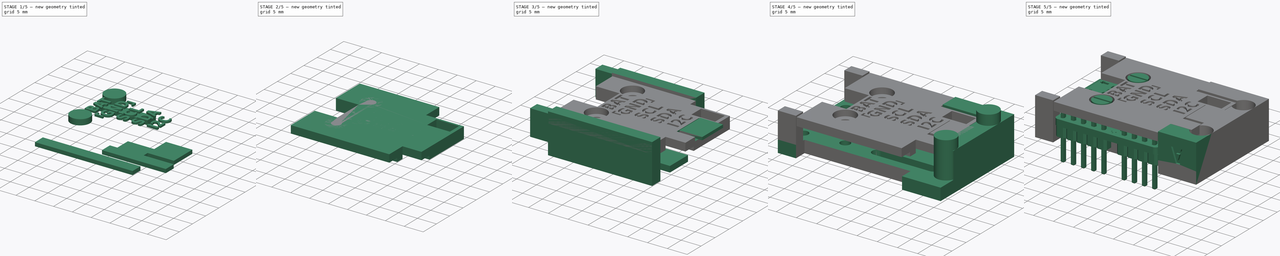
[diagram: build sequence overview — one tinted view per stage of 5, left to right]
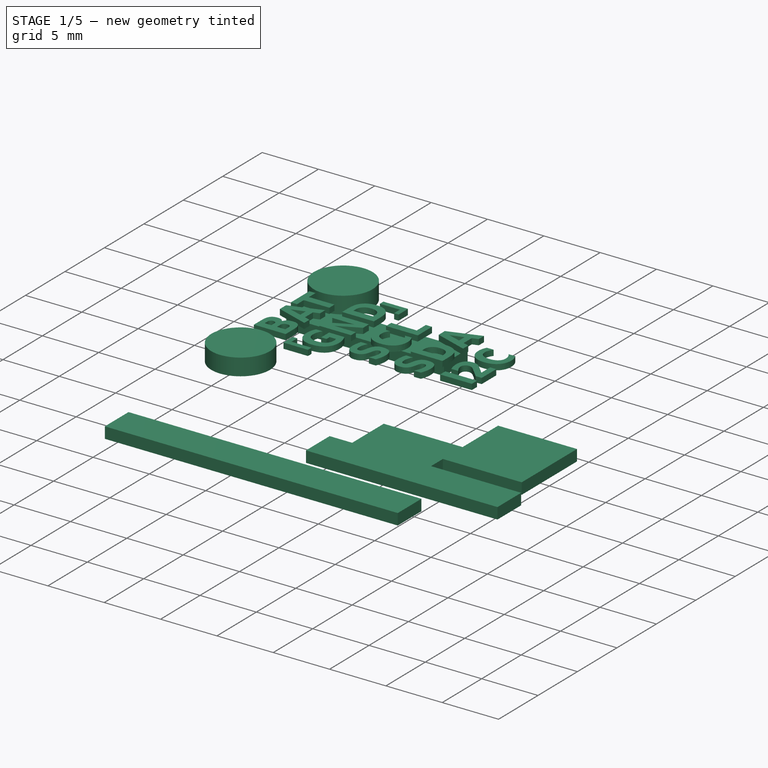
[diagram: stage 1 of 5 — iso view after this stage's code; geometry added in this stage tinted green]
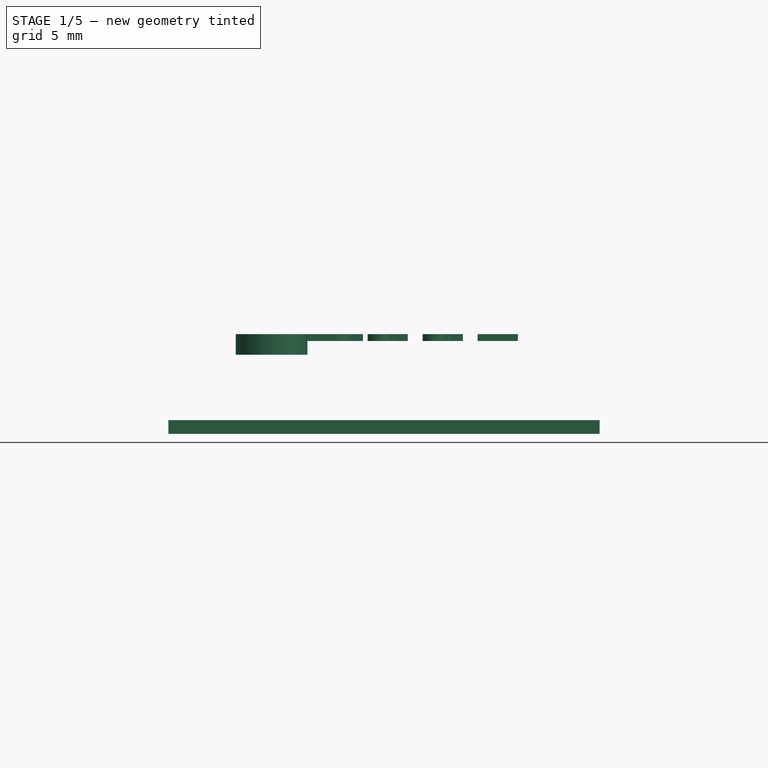
[diagram: stage 1 of 5 — front view after this stage's code; geometry added in this stage tinted green]
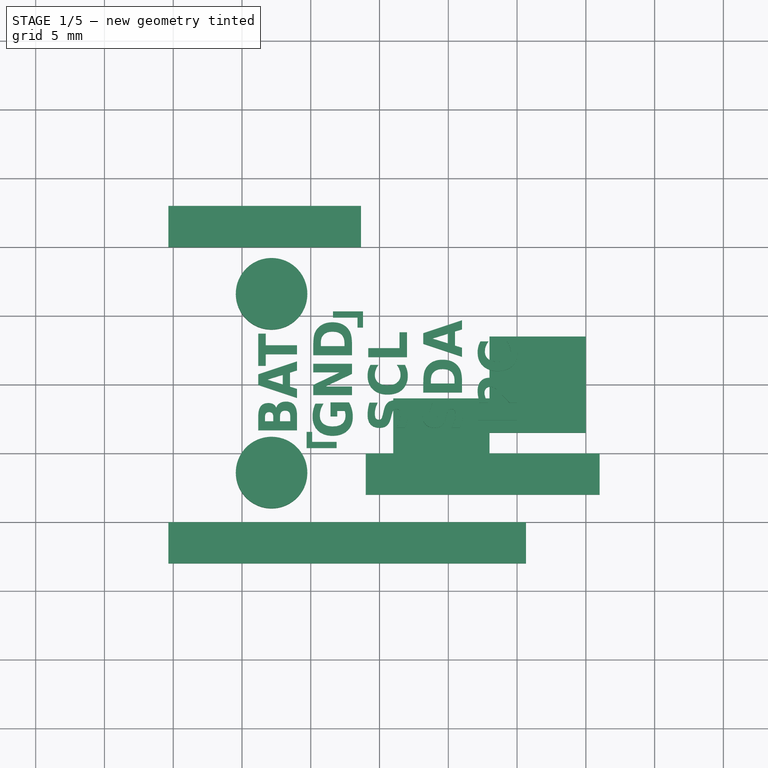
[diagram: stage 1 of 5 — top view after this stage's code; geometry added in this stage tinted green]
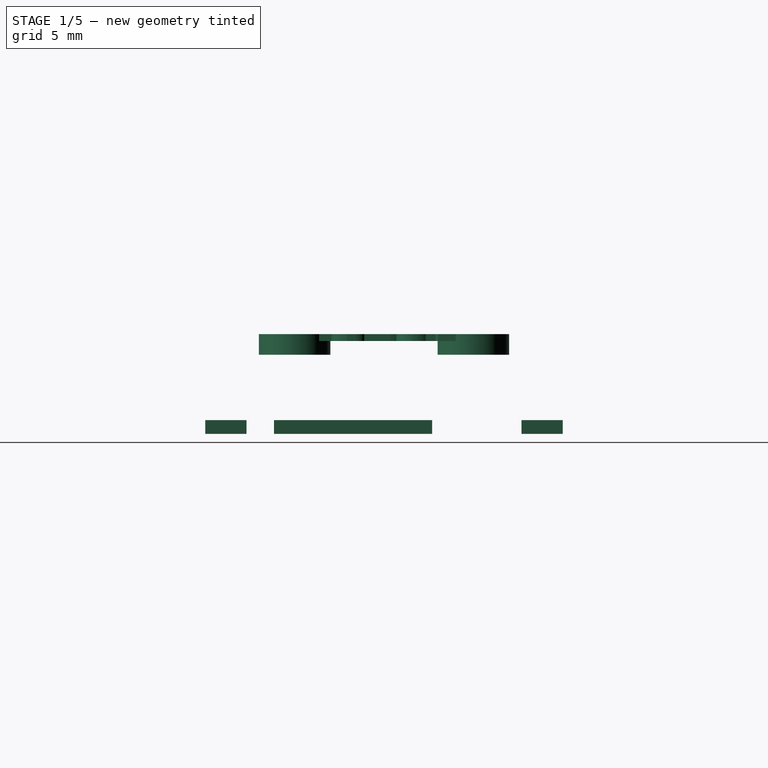
[diagram: stage 1 of 5 — right view after this stage's code; geometry added in this stage tinted green]
FCSTD DOCUMENT  (FreeCAD 0.15R4671 (Git))
Label: FutabaS3003-wide
License: All rights reserved
LicenseURL: http://en.wikipedia.org/wiki/All_rights_reserved
objects: Part::Feature×169, Part::Box×25, Part::MultiFuse×19, Part::Cylinder×13, Part::Cut×12, PartDesign::Pad×10, Part::Part2DObjectPython×9, App::DocumentObjectGroup×3, Image::ImagePlane×2, Part::Compound×1, Sketcher::SketchObject×1, Part::FeaturePython×1
note: 270 computed .brp shape members not serialized (recipe doc carries the construction recipe); baked Part::Feature solids carry a one-line shape summary decoded from their .brp

FEATURE [Part::Box] Box053  label="Cube046"
  Height = 1
  Length = 7
  Placement = pos=(21,4,0) rot=(0,0,1;0rad)
  Width = 5
FEATURE [Part::Box] Box054  label="Cube047"
  Height = 1
  Length = 26
  Placement = pos=(4.65,-3,0) rot=(0,0,1;0rad)
  Width = 3
FEATURE [Part::Box] Box055  label="Cube048"
  Height = 1
  Length = 14
  Placement = pos=(4.65,20,0) rot=(0,0,1;0rad)
  Width = 3
FEATURE [Part::Cylinder] Cylinder026
  Angle = 360
  Height = 1.5
  Placement = pos=(12.15,3.5,5.75) rot=(0,0,1;0rad)
  Radius = 2.6
FEATURE [Part::Cylinder] Cylinder027
  Angle = 360
  Height = 1.5
  Placement = pos=(12.15,16.5,5.75) rot=(0,0,1;0rad)
  Radius = 2.6
FEATURE [Part::MultiFuse] Fusion042  label="screwHeadHole001"
  Shapes = -> [Cylinder026,Cylinder027]
FEATURE [Part::Box] Box056  label="Cube049"
  Height = 1
  Length = 17
  Placement = pos=(19,2,0) rot=(0,0,1;0rad)
  Width = 3
FEATURE [Part::Part2DObjectPython] ShapeString025  # Draft 2D object (typed FeaturePython)
  FontFile = <path>
  Placement = pos=(14,6.25,6.75) rot=(0,0,1;1.5708rad)
  Size = 3
  String = BAT
  Tracking = 0
FEATURE [PartDesign::Pad] Pad026
  Length = 0.5
  Length2 = 100
  Placement = pos=(14,6.25,6.75) rot=(0,0,1;1.5708rad)
  Sketch = -> ShapeString025
  Type = 0
FEATURE [Part::Part2DObjectPython] ShapeString026  # Draft 2D object (typed FeaturePython)
  FontFile = <path>
  Placement = pos=(18,6,6.75) rot=(0,0,1;1.5708rad)
  Size = 3
  String = GND
  Tracking = 0
FEATURE [PartDesign::Pad] Pad027
  Length = 0.5
  Length2 = 100
  Placement = pos=(18,6,6.75) rot=(0,0,1;1.5708rad)
  Sketch = -> ShapeString026
  Type = 0
FEATURE [Part::Part2DObjectPython] ShapeString027  # Draft 2D object (typed FeaturePython)
  FontFile = <path>
  Placement = pos=(22,6.5,6.75) rot=(0,0,1;1.5708rad)
  Size = 3
  String = SCL
  Tracking = 0
FEATURE [PartDesign::Pad] Pad028
  Length = 0.5
  Length2 = 100
  Placement = pos=(22,6.5,6.75) rot=(0,0,1;1.5708rad)
  Sketch = -> ShapeString027
  Type = 0
FEATURE [Part::Part2DObjectPython] ShapeString028  # Draft 2D object (typed FeaturePython)
  FontFile = <path>
  Placement = pos=(26,6.5,6.75) rot=(0,0,1;1.5708rad)
  Size = 3
  String = SDA
  Tracking = 0
FEATURE [PartDesign::Pad] Pad029
  Length = 0.5
  Length2 = 100
  Placement = pos=(26,6.5,6.75) rot=(0,0,1;1.5708rad)
  Sketch = -> ShapeString028
  Type = 0
FEATURE [Part::Part2DObjectPython] ShapeString029  # Draft 2D object (typed FeaturePython)
  FontFile = <path>
  Placement = pos=(30,7,6.75) rot=(0,0,1;1.5708rad)
  Size = 3
  String = I2C
  Tracking = 0
FEATURE [PartDesign::Pad] Pad030
  Length = 0.5
  Length2 = 100
  Placement = pos=(30,7,6.75) rot=(0,0,1;1.5708rad)
  Sketch = -> ShapeString029
  Type = 0
FEATURE [Part::Box] Box057  label="Cube050"
  Height = 1
  Length = 7
  Placement = pos=(28,6.5,0) rot=(0,0,1;0rad)
  Width = 7
FEATURE [Part::Part2DObjectPython] ShapeString031  # Draft 2D object (typed FeaturePython)
  FontFile = <path>
  Placement = pos=(16.25,13.5,6.75) rot=(0,0,1;0rad)
  Size = 3
  String = ¬
  Tracking = 0
FEATURE [Part::Part2DObjectPython] ShapeString032  label="ShapeString030"  # Draft 2D object (typed FeaturePython)
  FontFile = <path>
  Placement = pos=(17.25,7,6.75) rot=(0,0,1;3.14159rad)
  Size = 3
  String = ¬
  Tracking = 0
FEATURE [PartDesign::Pad] Pad031
  Length = 0.5
  Length2 = 100
  Placement = pos=(16.25,13.5,6.75) rot=(0,0,1;0rad)
  Sketch = -> ShapeString031
  Type = 0
FEATURE [PartDesign::Pad] Pad032
  Length = 0.5
  Length2 = 100
  Placement = pos=(17.25,7,6.75) rot=(0,0,1;3.14159rad)
  Sketch = -> ShapeString032
  Type = 0
FEATURE [Part::MultiFuse] Fusion043  label="text"
  Shapes = -> [Pad026,Pad030,Pad029,Pad028,Pad027,Pad031,Pad032]
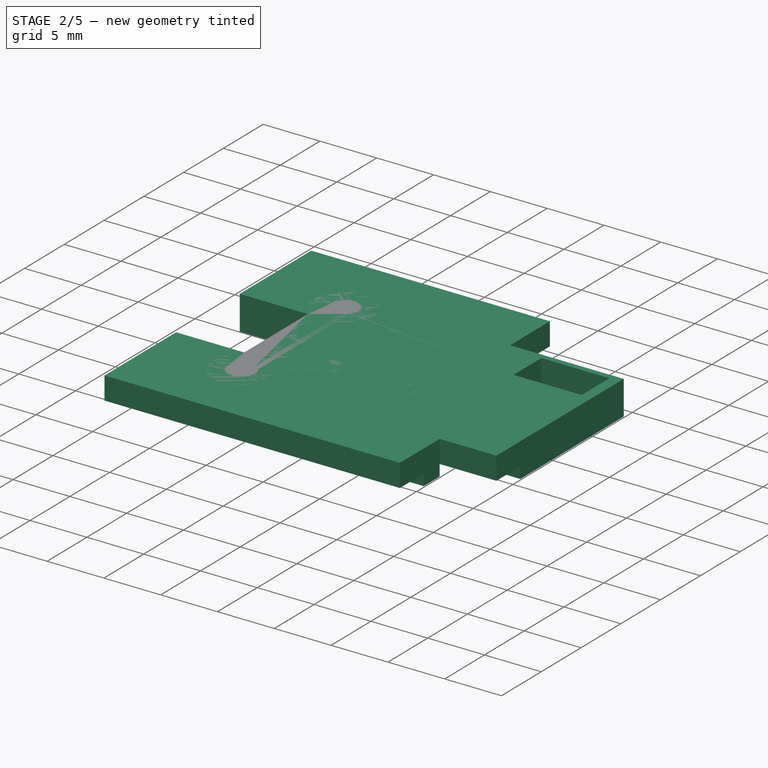
[diagram: stage 2 of 5 — iso view after this stage's code; geometry added in this stage tinted green]
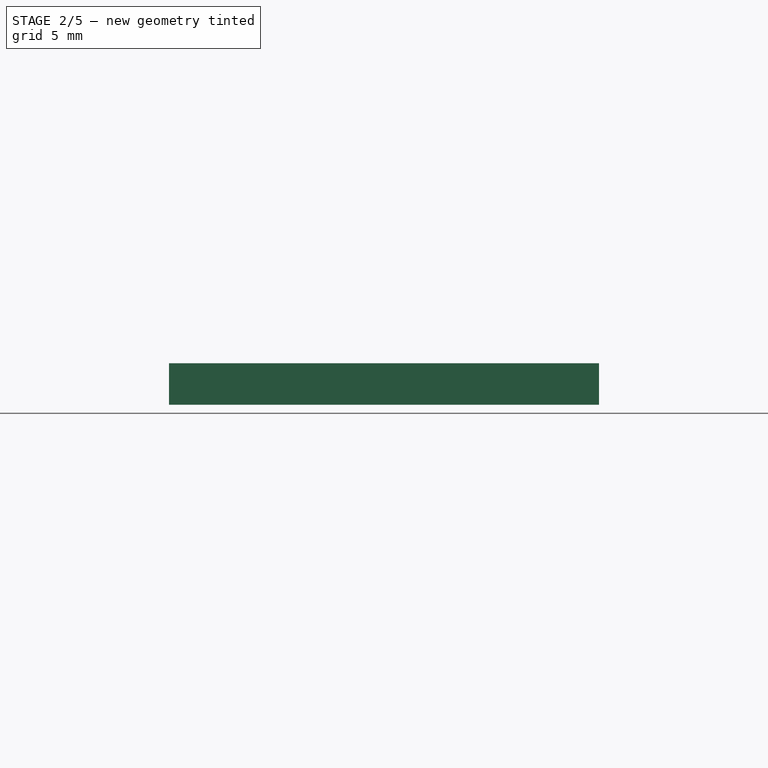
[diagram: stage 2 of 5 — front view after this stage's code; geometry added in this stage tinted green]
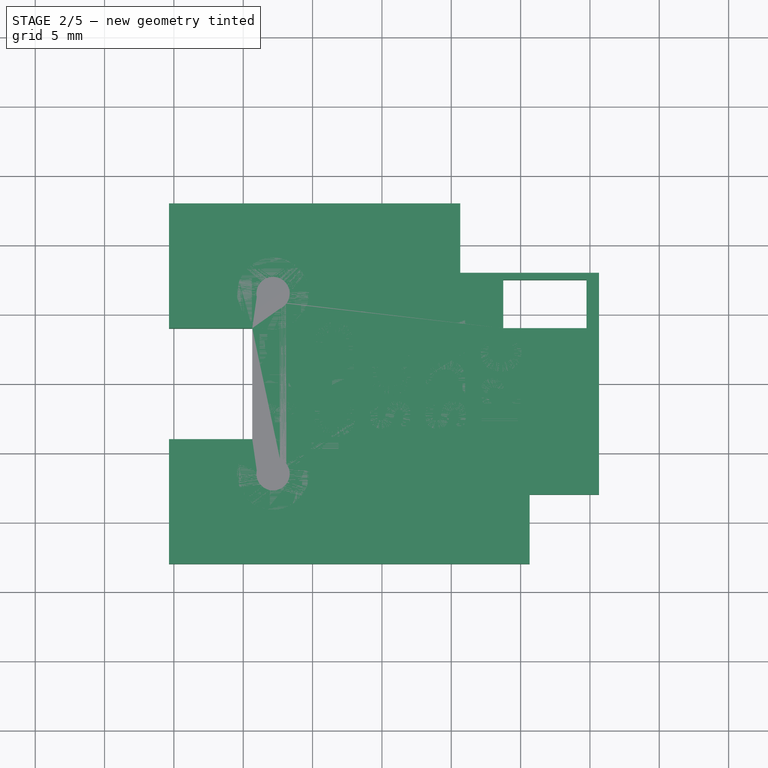
[diagram: stage 2 of 5 — top view after this stage's code; geometry added in this stage tinted green]
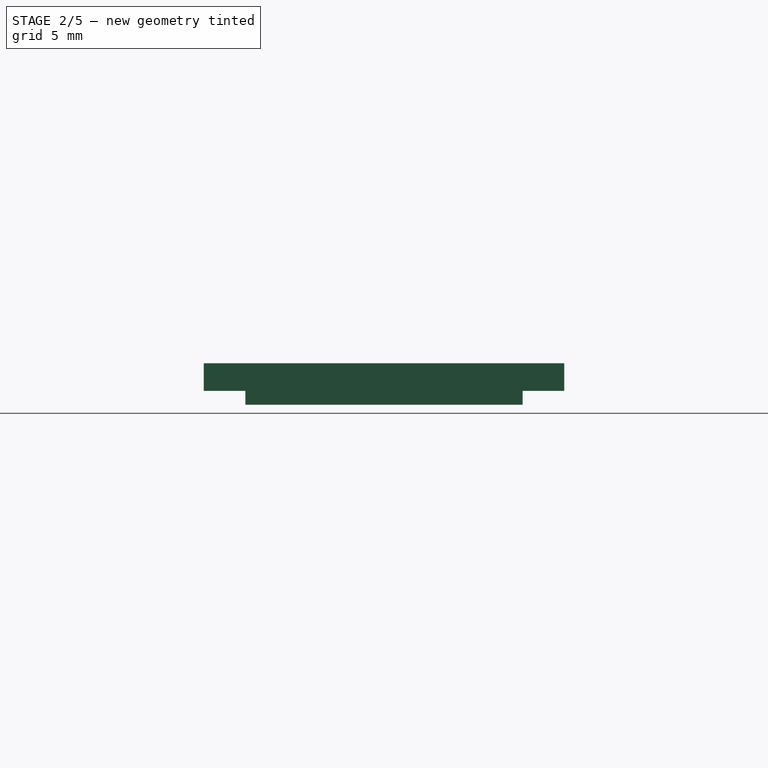
[diagram: stage 2 of 5 — right view after this stage's code; geometry added in this stage tinted green]
FEATURE [Part::Box] Box046  label="btnHole001"
  Height = 5
  Length = 6
  Placement = pos=(28.75,14,2) rot=(0,0,1;0rad)
  Width = 3.5
FEATURE [Part::Box] Box047  label="Cube040"
  Height = 3
  Length = 26
  Placement = pos=(4.65,-3,4) rot=(0,0,1;0rad)
  Width = 5
FEATURE [Part::Box] Box048  label="Cube041"
  Height = 3
  Length = 31
  Placement = pos=(4.65,2,4) rot=(0,0,1;0rad)
  Width = 16
FEATURE [Part::Box] Box049  label="Cube042"
  Height = 3
  Length = 14
  Placement = pos=(4.65,18,4) rot=(0,0,1;0rad)
  Width = 5
FEATURE [Part::Box] Box050  label="Cube043"
  Height = 2
  Length = 7
  Placement = pos=(18.65,18,5) rot=(0,0,1;0rad)
  Width = 5
FEATURE [Part::MultiFuse] Fusion039  label="Fusion032"
  Shapes = -> [Box050,Box047,Box048,Box049]
FEATURE [Part::Box] Box051  label="Cube044"
  Height = 3
  Length = 6
  Placement = pos=(4.65,6,4) rot=(0,0,1;0rad)
  Width = 8
FEATURE [Part::Cut] Cut025  label="Cut036"
  Base = -> Fusion039
  Tool = -> Box051
FEATURE [Part::Cylinder] Cylinder024
  Angle = 360
  Height = 3
  Placement = pos=(7.5,6.5,0) rot=(0,0,1;0rad)
  Radius = 1.2
FEATURE [Part::Cylinder] Cylinder025
  Angle = 360
  Height = 3
  Placement = pos=(7.5,19.5,0) rot=(0,0,1;0rad)
  Radius = 1.2
FEATURE [Part::MultiFuse] Fusion040  label="holes-pcb-screws002"
  Placement = pos=(4.65,-3,4) rot=(0,0,1;0rad)
  Shapes = -> [Cylinder025,Cylinder024]
FEATURE [Part::Cut] Cut026  label="Cut037"
  Base = -> Cut025
  Tool = -> Fusion040
FEATURE [Part::Cut] Cut027  label="Cut021"
  Base = -> Cut026
  Placement = pos=(0,0,0.25) rot=(0,0,1;0rad)
  Tool = -> Box046
FEATURE [Part::Box] Box052  label="Cube045"
  Height = 1
  Length = 3
  Placement = pos=(12.5,6,0) rot=(0,0,1;0rad)
  Width = 4
FEATURE [Part::MultiFuse] Fusion041  label="sockets001"
  Placement = pos=(0,0,4.25) rot=(0,0,1;0rad)
  Shapes = -> [Box055,Box053,Box052,Box054,Box056,Box057]
FEATURE [Part::Cut] Cut028  label="Cut038"
  Base = -> Cut027
  Tool = -> Fusion041
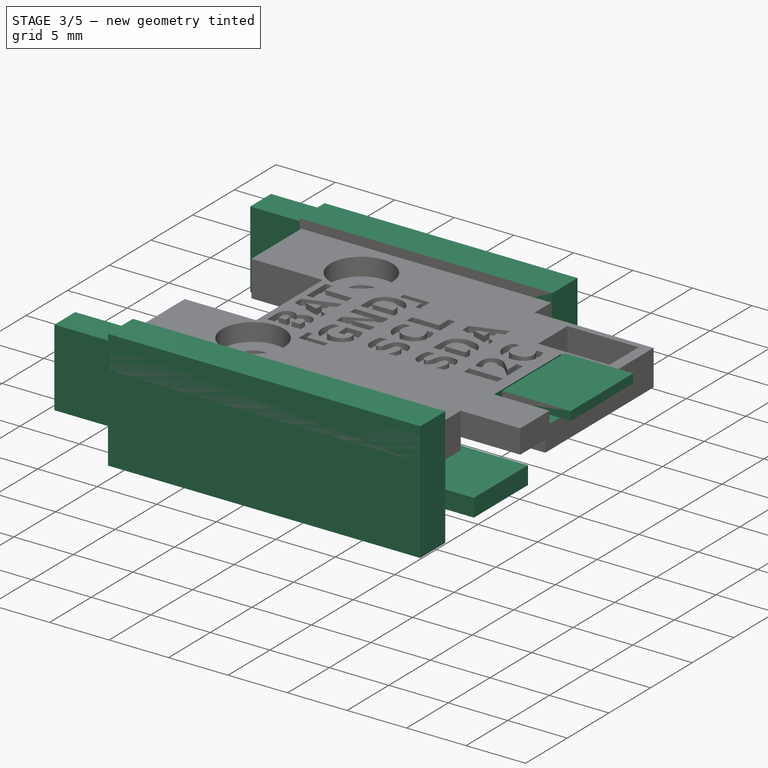
[diagram: stage 3 of 5 — iso view after this stage's code; geometry added in this stage tinted green]
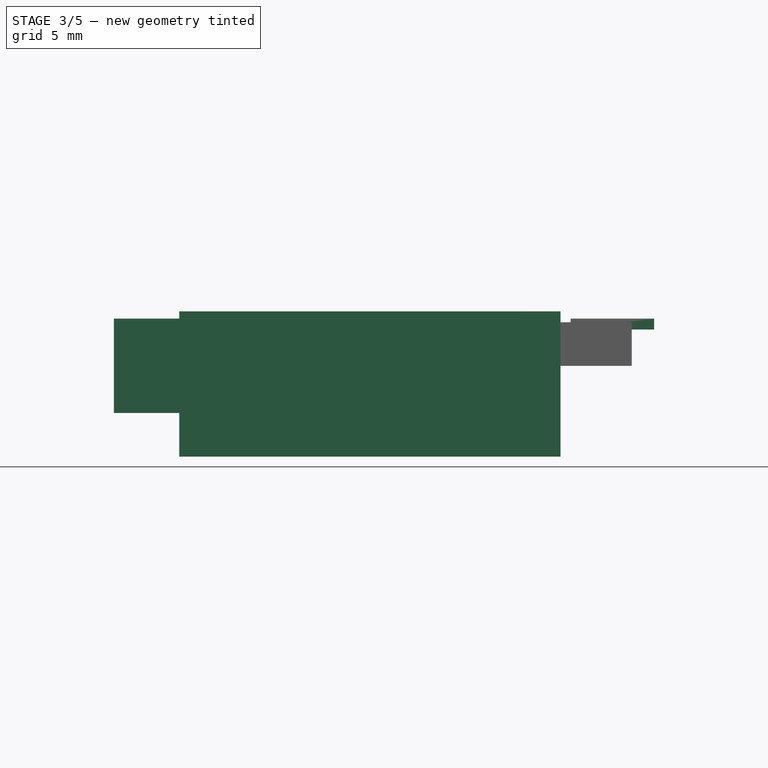
[diagram: stage 3 of 5 — front view after this stage's code; geometry added in this stage tinted green]
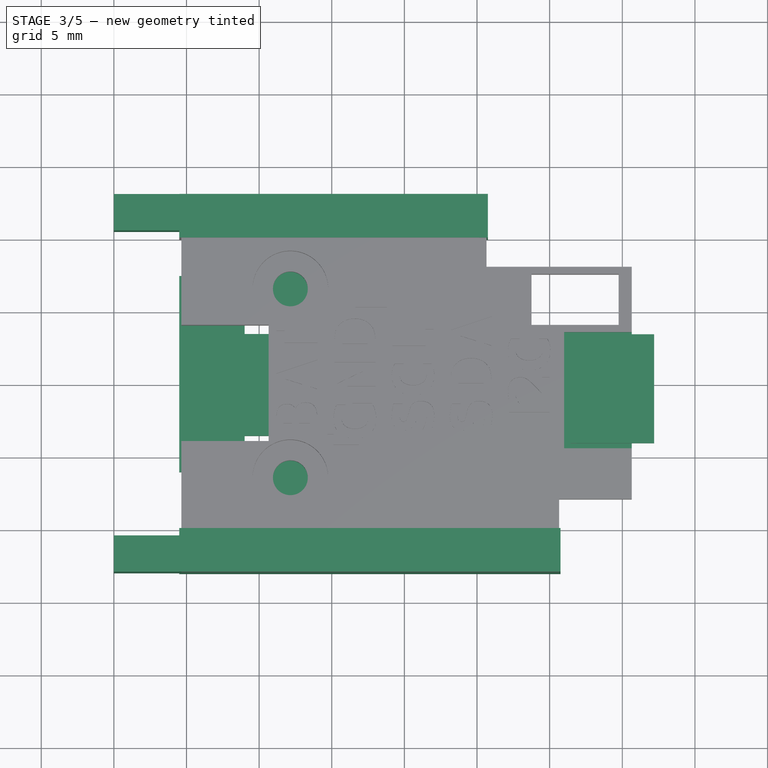
[diagram: stage 3 of 5 — top view after this stage's code; geometry added in this stage tinted green]
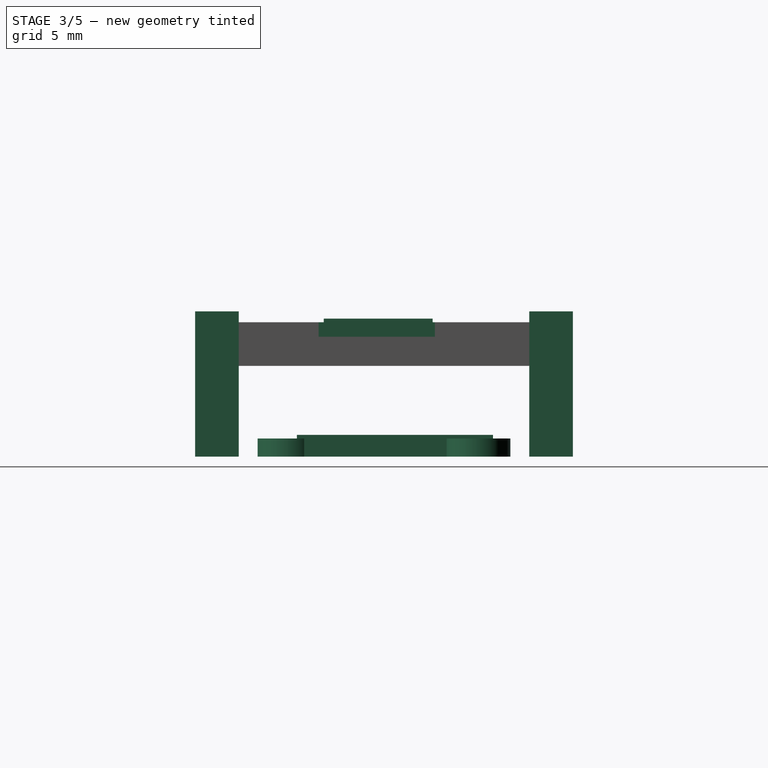
[diagram: stage 3 of 5 — right view after this stage's code; geometry added in this stage tinted green]
FEATURE [Image::ImagePlane] ImagePlane
  Placement = pos=(20.1,10,3.61) rot=(0,0,1;0rad)
  XSize = 31
  YSize = 26
FEATURE [Image::ImagePlane] ImagePlane001
  Placement = pos=(20.1,10,1.95) rot=(0,1,0;3.14159rad)
  XSize = 31
  YSize = 26
FEATURE [App::DocumentObjectGroup] Group002  label="Board"
  Group = -> [Compound,ImagePlane,ImagePlane001]
FEATURE [Part::Box] Box032  label="Cube028"
  Height = 10
  Length = 21.25
  Placement = pos=(4.5,20,-2) rot=(0,0,1;0rad)
  Width = 3
FEATURE [Part::Box] Box033  label="Cube029"
  Height = 10
  Length = 26.25
  Placement = pos=(4.5,-3,-2) rot=(0,0,1;0rad)
  Width = 3
FEATURE [Part::Box] Box034  label="Cube030"
  Height = 6.5
  Length = 4.5
  Placement = pos=(0,-3,1) rot=(0,0,1;0rad)
  Width = 2.5
FEATURE [Part::Box] Box035  label="Cube031"
  Height = 6.5
  Length = 4.5
  Placement = pos=(0,20.5,1) rot=(0,0,1;0rad)
  Width = 2.5
FEATURE [Part::MultiFuse] Fusion031  label="Fusion039"
  Shapes = -> [Box034,Box035]
FEATURE [Part::Cylinder] Cylinder022
  Angle = 360
  Height = 1.25
  Placement = pos=(12.15,3.5,-1) rot=(0,0,1;0rad)
  Radius = 2.2
FEATURE [Part::Cylinder] Cylinder023
  Angle = 360
  Height = 1.25
  Placement = pos=(12.15,16.5,-1) rot=(0,0,1;0rad)
  Radius = 2.2
FEATURE [Part::MultiFuse] Fusion035  label="nutHoles"
  Placement = pos=(0,0,-1) rot=(0,0,1;0rad)
  Shapes = -> [Cylinder022,Cylinder023]
FEATURE [Part::Box] Box041  label="tab"
  Height = 0.75
  Length = 5.75
  Placement = pos=(31.4422,5.84994,6.75) rot=(0,0,1;0rad)
  Width = 7.5
FEATURE [Part::Box] Box042  label="Cube036"
  Height = 1.5
  Length = 15
  Placement = pos=(4.5,6.5,-2) rot=(0,0,1;0rad)
  Width = 7
FEATURE [Part::Box] Box043  label="Cube037"
  Height = 1.5
  Length = 4.5
  Placement = pos=(4.5,4,-2) rot=(0,0,1;0rad)
  Width = 13.5
FEATURE [Part::Box] Box044  label="Cube038"
  Height = 1.5
  Length = 13
  Placement = pos=(17,4.5,-2) rot=(0,0,1;0rad)
  Width = 6.5
FEATURE [Part::MultiFuse] Fusion037  label="motor-cable-space"
  Shapes = -> [Box042,Box043,Box044]
FEATURE [App::DocumentObjectGroup] Group  label="Base"
  Group = -> [Cut024]
FEATURE [Part::Box] Box045  label="Cube039"
  Height = 1
  Length = 5
  Placement = pos=(31,5.5,6.25) rot=(0,0,1;0rad)
  Width = 8
FEATURE [Part::Cut] Cut029  label="Cut023"
  Base = -> Cut028
  Tool = -> Fusion042
FEATURE [Part::Cut] Cut030  label="Cut039"
  Base = -> Cut029
  Tool = -> Fusion043
FEATURE [Part::Cut] Cut031  label="cover-src"
  Base = -> Cut030
  Tool = -> Box045
FEATURE [App::DocumentObjectGroup] Group001  label="Cover"
  Group = -> [Cut031]
note: 9 file-system paths scrubbed to <path> (originals preserved in the JSON sidecar)
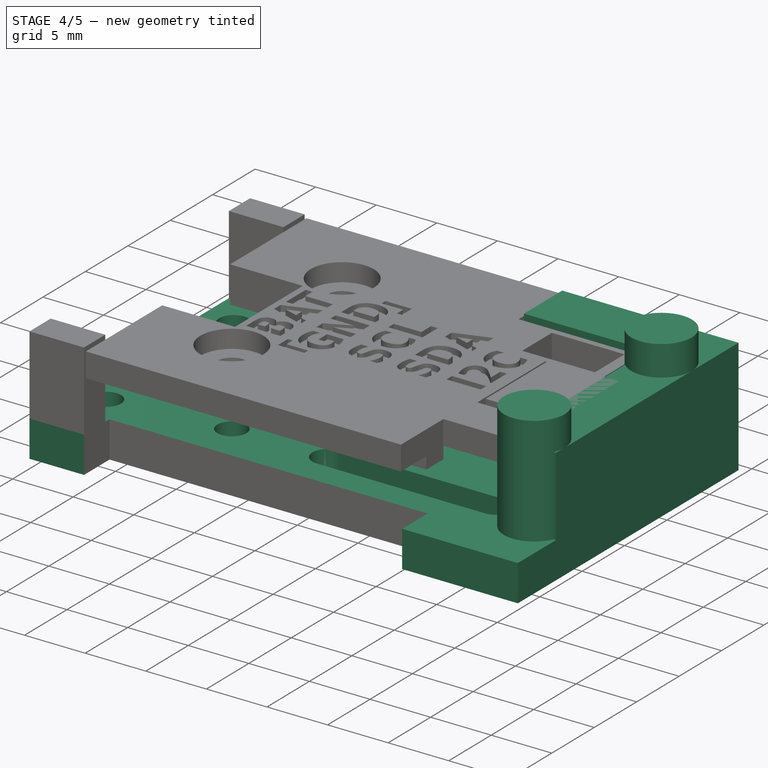
[diagram: stage 4 of 5 — iso view after this stage's code; geometry added in this stage tinted green]
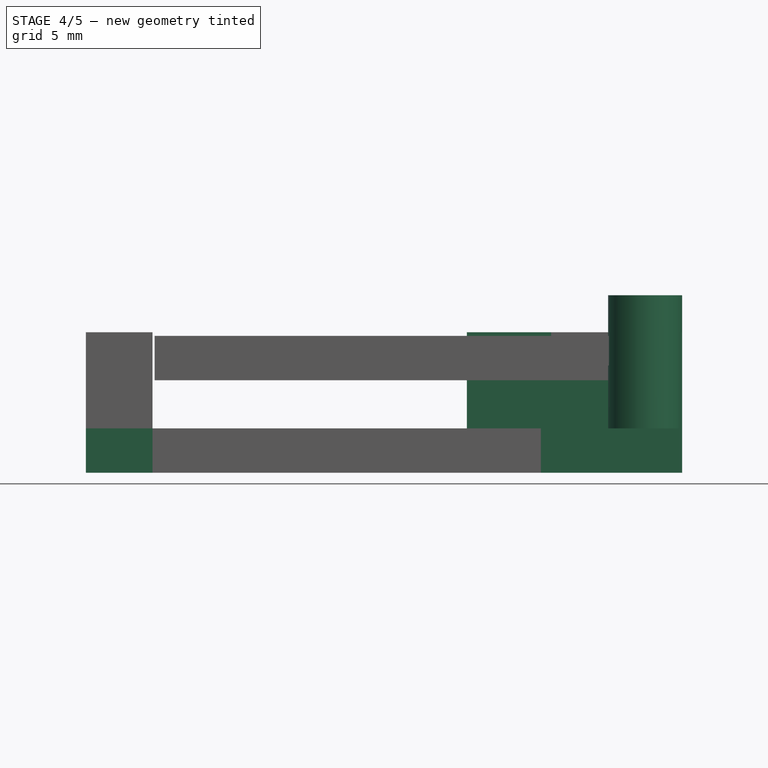
[diagram: stage 4 of 5 — front view after this stage's code; geometry added in this stage tinted green]
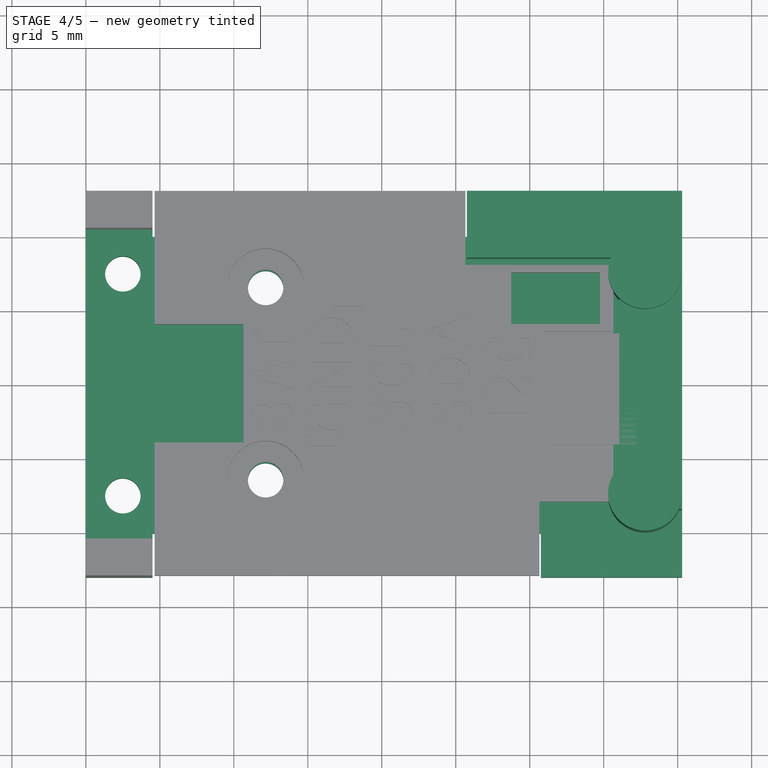
[diagram: stage 4 of 5 — top view after this stage's code; geometry added in this stage tinted green]
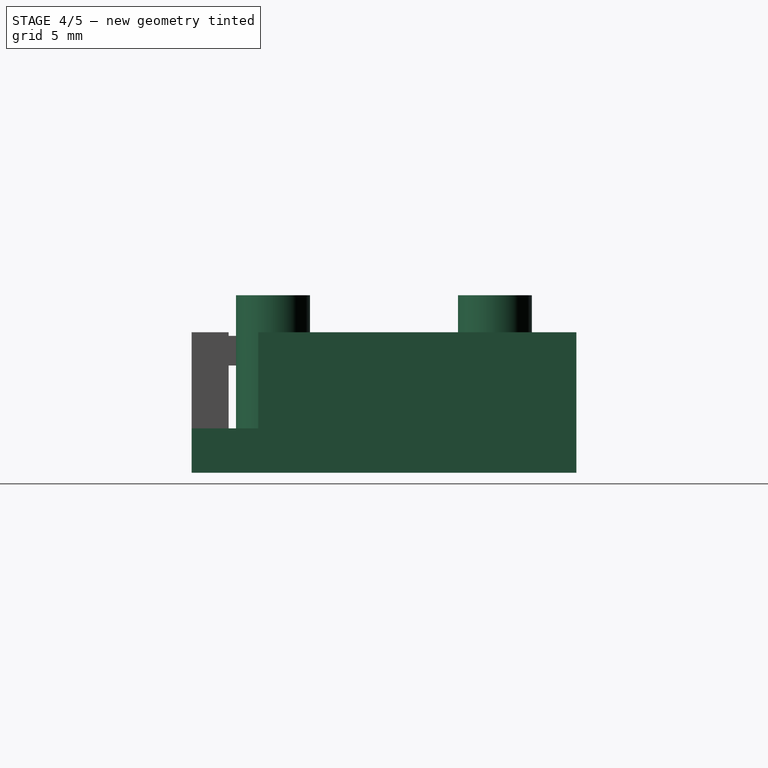
[diagram: stage 4 of 5 — right view after this stage's code; geometry added in this stage tinted green]
FEATURE [Sketcher::SketchObject] Sketch001
  Placement = pos=(0,-3,-2) rot=(0,0,1;0rad)
  sketch-geometry (12):
    g0: LineSegment StartX=0 StartY=0 StartZ=0 EndX=40.3 EndY=0 EndZ=0
    g1: LineSegment StartX=40.3 StartY=0 StartZ=0 EndX=40.3 EndY=26 EndZ=0
    g2: LineSegment StartX=40.3 StartY=26 StartZ=0 EndX=0 EndY=26 EndZ=0
    g3: LineSegment StartX=0 StartY=26 StartZ=0 EndX=0 EndY=0 EndZ=0
    g4: ArcOfCircle CenterX=20.0635 CenterY=6.53561 CenterZ=0 NormalX=0 NormalY=0 NormalZ=1 Radius=1.29036 StartAngle=1.5708 EndAngle=4.71239
    g5: ArcOfCircle CenterX=33.9132 CenterY=6.53561 CenterZ=0 NormalX=0 NormalY=0 NormalZ=1 Radius=1.29036 StartAngle=4.71239 EndAngle=7.85398
    g6: LineSegment StartX=20.0635 StartY=5.24525 StartZ=0 EndX=33.9132 EndY=5.24525 EndZ=0
    g7: LineSegment StartX=20.0635 StartY=7.82596 StartZ=0 EndX=33.9132 EndY=7.82596 EndZ=0
    g8: LineSegment StartX=22.6592 StartY=15.2926 StartZ=0 EndX=28.2319 EndY=15.2926 EndZ=0
    g9: LineSegment StartX=28.2319 StartY=15.2926 StartZ=0 EndX=28.2319 EndY=20.4481 EndZ=0
    g10: LineSegment StartX=28.2319 StartY=20.4481 StartZ=0 EndX=22.6592 EndY=20.4481 EndZ=0
    g11: LineSegment StartX=22.6592 StartY=20.4481 StartZ=0 EndX=22.6592 EndY=15.2926 EndZ=0
  constraints (25):
    c: Coincident(g0,g1)
    c: Coincident(g1,g2)
    c: Coincident(g2,g3)
    c: Coincident(g3,g0)
    c: Horizontal(g0)
    c: Horizontal(g2)
    c: Vertical(g1)
    c: Vertical(g3)
    c: Coincident(g0,g-1)
    c: DistanceY(g3) = -26
    c: DistanceX(g2) = -40.3
    c: Tangent(g4,g7) = 1.5708
    c: Tangent(g4,g6) = -1.5708
    c: Tangent(g6,g5) = -1.5708
    c: Tangent(g7,g5) = 1.5708
    c: Horizontal(g6)
    c: Equal(g4,g5)
    c: Coincident(g8,g9)
    c: Coincident(g9,g10)
    c: Coincident(g10,g11)
    c: Coincident(g11,g8)
    c: Horizontal(g8)
    c: Horizontal(g10)
    c: Vertical(g9)
    c: Vertical(g11)
FEATURE [PartDesign::Pad] Pad001
  Length = 3
  Length2 = 100
  Placement = pos=(0,-3,-2) rot=(0,0,1;0rad)
  Sketch = -> Sketch001
  Type = 0
FEATURE [Part::Cylinder] Cylinder012
  Angle = 360
  Height = 3
  Placement = pos=(7.5,6.5,-1) rot=(0,0,1;0rad)
  Radius = 1.2
FEATURE [Part::Cylinder] Cylinder013
  Angle = 360
  Height = 3
  Placement = pos=(7.5,19.5,-1) rot=(0,0,1;0rad)
  Radius = 1.2
FEATURE [Part::MultiFuse] Fusion016  label="holes-pcb-screws"
  Placement = pos=(4.65,-3,0) rot=(0,0,1;0rad)
  Shapes = -> [Cylinder013,Cylinder012]
FEATURE [Part::Cylinder] Cylinder014
  Angle = 360
  Height = 3.1
  Placement = pos=(0,0,-1) rot=(0,0,1;0rad)
  Radius = 1.2
FEATURE [Part::FeaturePython] Array  label="holes-servo-screws"  # Draft array (typed FeaturePython)
  Angle = 360
  ArrayType = 0
  Axis = (0,0,1)
  Base = -> Cylinder014
  Center = (0,0,0)
  Fuse = false
  IntervalAxis = (0,0,0)
  IntervalX = (35.3,0,0)
  IntervalY = (0,15,0)
  IntervalZ = (0,0,0)
  NumberPolar = 1
  NumberX = 2
  NumberY = 2
  NumberZ = 1
  Placement = pos=(2.5,2.5,-1) rot=(0,0,1;0rad)
FEATURE [Part::MultiFuse] Fusion017  label="holes"
  Shapes = -> [Array,Fusion016]
FEATURE [Part::Box] Box016  label="Cube012"
  Height = 6.5
  Length = 14.55
  Placement = pos=(25.75,18.5,1) rot=(0,0,1;0rad)
  Width = 4.5
FEATURE [Part::Box] Box017  label="Cube013"
  Height = 6.5
  Length = 4.25
  Placement = pos=(40.3,18.5,1) rot=(0,0,1;3.14159rad)
  Width = 17
FEATURE [Part::Cylinder] Cylinder015
  Angle = 360
  Height = 10
  Placement = pos=(37.8,2.5,0) rot=(0,0,1;0rad)
  Radius = 2.5
FEATURE [Part::Cylinder] Cylinder016
  Angle = 360
  Height = 10
  Placement = pos=(37.8,17.5,0) rot=(0,0,1;0rad)
  Radius = 2.5
FEATURE [Part::MultiFuse] Fusion019
  Shapes = -> [Cylinder016,Cylinder015]
FEATURE [Part::MultiFuse] Fusion029  label="pinBorder"
  Shapes = -> [Box032,Box033]
FEATURE [Part::MultiFuse] Fusion030
  Shapes = -> [Fusion017,Fusion029,Fusion035,Fusion037]
FEATURE [Part::Cut] Cut021  label="Cut027"
  Base = -> Pad001
  Tool = -> Fusion030
FEATURE [Part::MultiFuse] Fusion032  label="platter"
  Shapes = -> [Cut021,Fusion031]
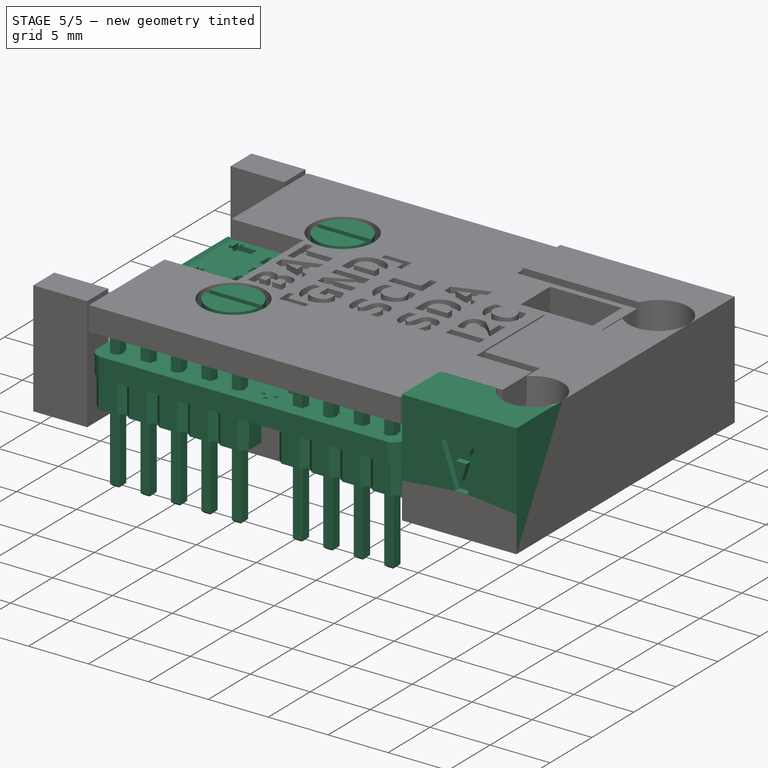
[diagram: stage 5 of 5 — iso view after this stage's code; geometry added in this stage tinted green]
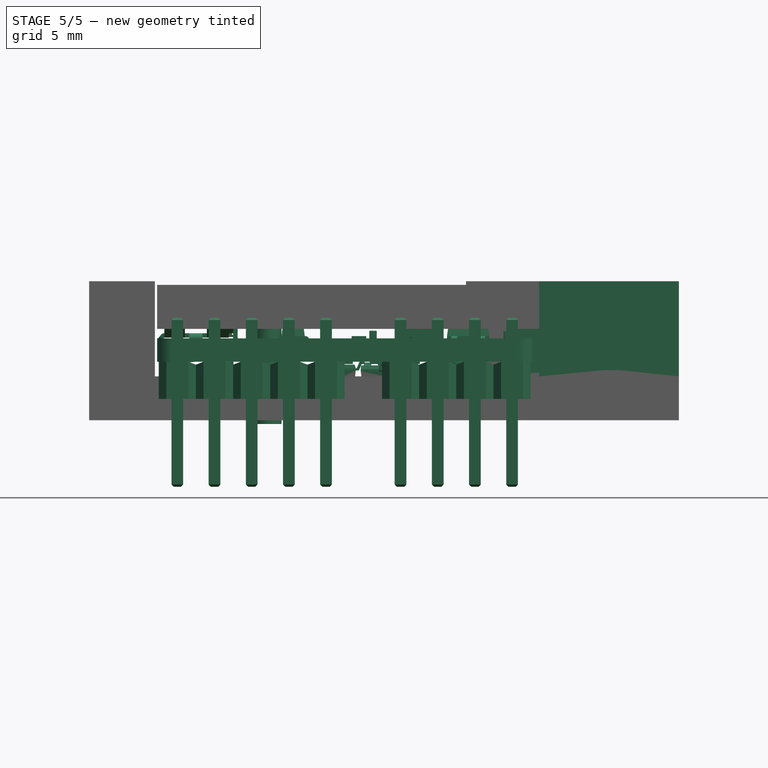
[diagram: stage 5 of 5 — front view after this stage's code; geometry added in this stage tinted green]
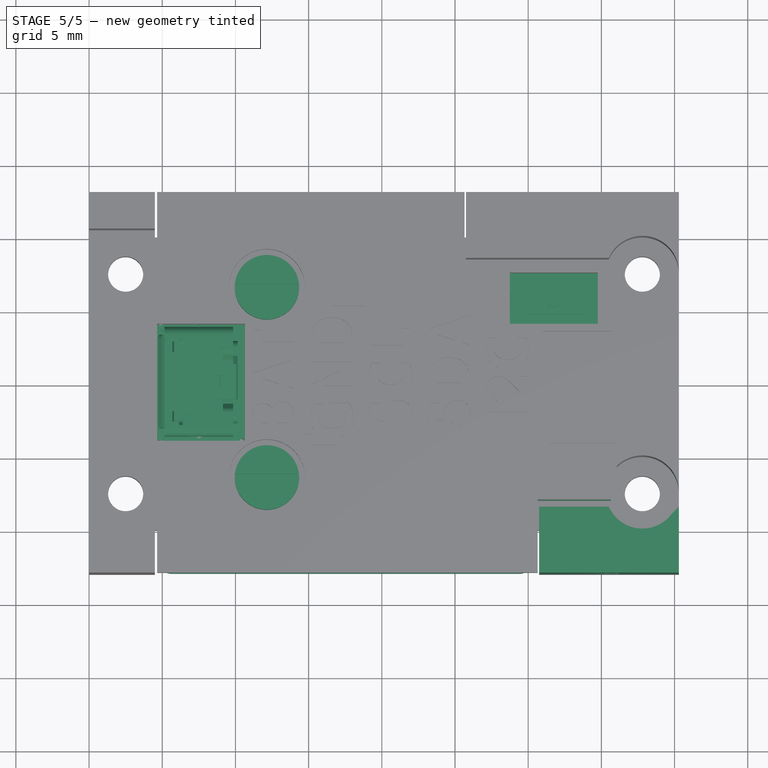
[diagram: stage 5 of 5 — top view after this stage's code; geometry added in this stage tinted green]
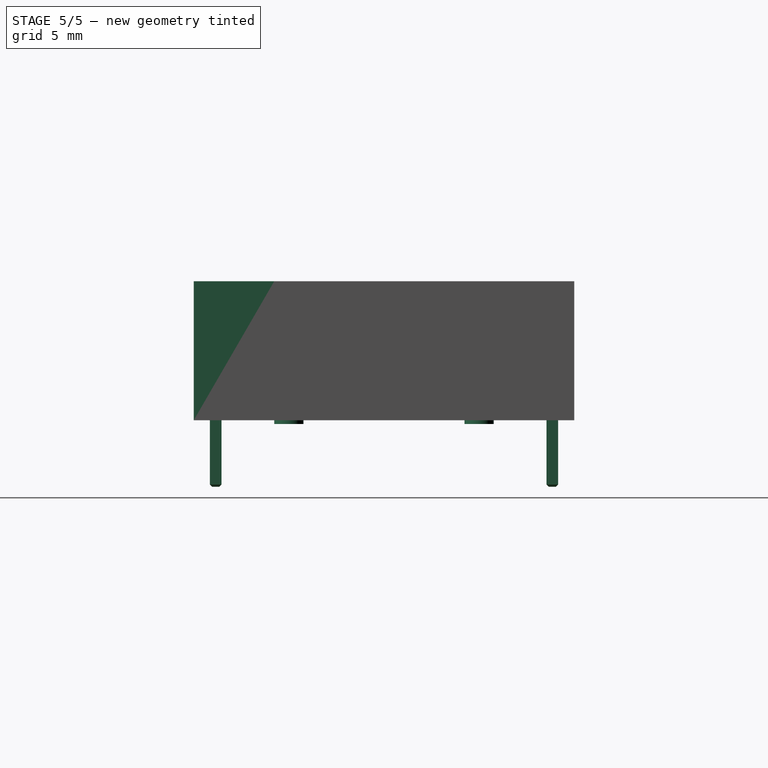
[diagram: stage 5 of 5 — right view after this stage's code; geometry added in this stage tinted green]
FEATURE [Part::Feature] Fusion002  label="FutabaS3003-screws"
  Placement = pos=(20.15,10,1.5) rot=(1,0,0;3.14159rad)
  shape: bbox 38.86 x 18.56 x 28.9 mm, 76 faces, 4 solids (baked)
FEATURE [Part::Feature] Cut005  label="FutabaS3003"
  Placement = pos=(45.15,10,3.5) rot=(1,0,0;3.14159rad)
  shape: bbox 55.5 x 20 x 36.24 mm, 271 faces (baked)
FEATURE [Part::Feature] Part__Feature  label="Base001"
  shape: bbox 31 x 26 x 1.6 mm, 181 faces (baked)
FEATURE [Part::Feature] Part__Feature001  label="Q2"
  shape: bbox 3 x 1.4 x 1 mm, 14 faces (baked)
FEATURE [Part::Feature] Part__Feature002  label="Q003"
  shape: bbox 0.51 x 0.61 x 0.6 mm, 16 faces (baked)
FEATURE [Part::Feature] Part__Feature003  label="Q004"
  shape: bbox 0.51 x 0.61 x 0.6 mm, 16 faces (baked)
FEATURE [Part::Feature] Part__Feature004  label="Q005"
  shape: bbox 0.51 x 0.61 x 0.6 mm, 16 faces (baked)
FEATURE [Part::Feature] Part__Feature005  label="C9"
  shape: bbox 0.5 x 0.2 x 0.55 mm, 18 faces (baked)
FEATURE [Part::Feature] Part__Feature006  label="C010"
  shape: bbox 0.5 x 0.2 x 0.55 mm, 18 faces (baked)
FEATURE [Part::Feature] Part__Feature007  label="C011"
  shape: bbox 0.46 x 0.6 x 0.51 mm, 10 faces (baked)
FEATURE [Part::Feature] Part__Feature008  label="C11"
  shape: bbox 0.5 x 0.2 x 0.55 mm, 18 faces (baked)
FEATURE [Part::Feature] Part__Feature009  label="C012"
  shape: bbox 0.5 x 0.2 x 0.55 mm, 18 faces (baked)
FEATURE [Part::Feature] Part__Feature010  label="C013"
  shape: bbox 0.46 x 0.6 x 0.51 mm, 10 faces (baked)
FEATURE [Part::Feature] Part__Feature011  label="C3"
  shape: bbox 0.2 x 0.5 x 0.55 mm, 18 faces (baked)
FEATURE [Part::Feature] Part__Feature012  label="C014"
  shape: bbox 0.2 x 0.5 x 0.55 mm, 18 faces (baked)
FEATURE [Part::Feature] Part__Feature013  label="C015"
  shape: bbox 0.6 x 0.46 x 0.51 mm, 10 faces (baked)
FEATURE [Part::Feature] Part__Feature014  label="C7"
  shape: bbox 0.5 x 0.2 x 0.55 mm, 18 faces (baked)
FEATURE [Part::Feature] Part__Feature015  label="C016"
  shape: bbox 0.5 x 0.2 x 0.55 mm, 18 faces (baked)
FEATURE [Part::Feature] Part__Feature016  label="C017"
  shape: bbox 0.46 x 0.6 x 0.51 mm, 10 faces (baked)
FEATURE [Part::Feature] Part__Feature017  label="C8"
  shape: bbox 0.5 x 0.2 x 0.55 mm, 18 faces (baked)
FEATURE [Part::Feature] Part__Feature018  label="C018"
  shape: bbox 0.5 x 0.2 x 0.55 mm, 18 faces (baked)
FEATURE [Part::Feature] Part__Feature019  label="C019"
  shape: bbox 0.46 x 0.6 x 0.51 mm, 10 faces (baked)
FEATURE [Part::Feature] Part__Feature020  label="C10"
  shape: bbox 0.5 x 0.2 x 0.55 mm, 18 faces (baked)
FEATURE [Part::Feature] Part__Feature021  label="C020"
  shape: bbox 0.5 x 0.2 x 0.55 mm, 18 faces (baked)
FEATURE [Part::Feature] Part__Feature022  label="C021"
  shape: bbox 0.46 x 0.6 x 0.51 mm, 10 faces (baked)
FEATURE [Part::Feature] Part__Feature023  label="C6"
  shape: bbox 0.2 x 0.5 x 0.55 mm, 18 faces (baked)
FEATURE [Part::Feature] Part__Feature024  label="C022"
  shape: bbox 0.2 x 0.5 x 0.55 mm, 18 faces (baked)
FEATURE [Part::Feature] Part__Feature025  label="C023"
  shape: bbox 0.6 x 0.46 x 0.51 mm, 10 faces (baked)
FEATURE [Part::Feature] Part__Feature026  label="C4"
  shape: bbox 0.2 x 0.5 x 0.55 mm, 18 faces (baked)
FEATURE [Part::Feature] Part__Feature027  label="C024"
  shape: bbox 0.2 x 0.5 x 0.55 mm, 18 faces (baked)
FEATURE [Part::Feature] Part__Feature028  label="C025"
  shape: bbox 0.6 x 0.46 x 0.51 mm, 10 faces (baked)
FEATURE [Part::Feature] Part__Feature029  label="C2"
  shape: bbox 0.2 x 0.5 x 0.55 mm, 18 faces (baked)
FEATURE [Part::Feature] Part__Feature030  label="C026"
  shape: bbox 0.2 x 0.5 x 0.55 mm, 18 faces (baked)
FEATURE [Part::Feature] Part__Feature031  label="C027"
  shape: bbox 0.6 x 0.46 x 0.51 mm, 10 faces (baked)
FEATURE [Part::Feature] Part__Feature032  label="C1"
  shape: bbox 0.2 x 0.5 x 0.55 mm, 18 faces (baked)
FEATURE [Part::Feature] Part__Feature033  label="C028"
  shape: bbox 0.2 x 0.5 x 0.55 mm, 18 faces (baked)
FEATURE [Part::Feature] Part__Feature034  label="C029"
  shape: bbox 0.6 x 0.46 x 0.51 mm, 10 faces (baked)
FEATURE [Part::Feature] Part__Feature035  label="C5"
  shape: bbox 0.5 x 0.2 x 0.55 mm, 18 faces (baked)
FEATURE [Part::Feature] Part__Feature036  label="C030"
  shape: bbox 0.5 x 0.2 x 0.55 mm, 18 faces (baked)
FEATURE [Part::Feature] Part__Feature037  label="C031"
  shape: bbox 0.46 x 0.6 x 0.51 mm, 10 faces (baked)
FEATURE [Part::Feature] Part__Feature038  label="IC3"
  shape: bbox 5 x 5 x 1 mm, 6 faces (baked)
FEATURE [Part::Feature] Part__Feature039  label="LED1"
  shape: bbox 0.9 x 1.7 x 0.28 mm, 10 faces (baked)
FEATURE [Part::Feature] Part__Feature040  label="LED002"
  shape: bbox 0.8 x 0.4 x 0.02 mm, 8 faces (baked)
FEATURE [Part::Feature] Part__Feature041  label="LED003"
  shape: bbox 0.355 x 0.15 x 0.31 mm, 6 faces (baked)
FEATURE [Part::Feature] Part__Feature042  label="LED004"
  shape: bbox 0.9 x 0.275 x 0.01 mm, 8 faces (baked)
FEATURE [Part::Feature] Part__Feature043  label="LED005"
  shape: bbox 0.355 x 0.15 x 0.31 mm, 6 faces (baked)
FEATURE [Part::Feature] Part__Feature044  label="LED006"
  shape: bbox 0.8 x 0.65 x 0.02 mm, 12 faces (baked)
FEATURE [Part::Feature] Part__Feature045  label="LED007"
  shape: bbox 0.9 x 0.275 x 0.01 mm, 8 faces (baked)
FEATURE [Part::Feature] Part__Feature046  label="LED008"
  shape: bbox 0.9 x 1.15 x 0.6 mm, 8 faces (baked)
FEATURE [Part::Feature] Part__Feature047  label="Q3"
  shape: bbox 1 x 0.9 x 0.1 mm, 11 faces (baked)
FEATURE [Part::Feature] Part__Feature048  label="Q006"
  shape: bbox 0.2691 x 0.4 x 0.1 mm, 11 faces (baked)
FEATURE [Part::Feature] Part__Feature049  label="Q007"
  shape: bbox 0.1753 x 0.4 x 0.1 mm, 9 faces (baked)
FEATURE [Part::Feature] Part__Feature050  label="Q008"
  shape: bbox 0.2617 x 0.4074 x 0.1 mm, 11 faces (baked)
FEATURE [Part::Feature] Part__Feature051  label="Q009"
  shape: bbox 0.07654 x 0.07654 x 0.1 mm, 6 faces (baked)
FEATURE [Part::Feature] Part__Feature052  label="Q010"
  shape: bbox 0.2617 x 0.4074 x 0.1 mm, 11 faces (baked)
FEATURE [Part::Feature] Part__Feature053  label="Q011"
  shape: bbox 0.1753 x 0.4 x 0.1 mm, 9 faces (baked)
FEATURE [Part::Feature] Part__Feature054  label="Q012"
  shape: bbox 2.9 x 2.1 x 0.15 mm, 10 faces (baked)
FEATURE [Part::Feature] Part__Feature055  label="Q013"
  shape: bbox 3.04 x 2.2 x 0.12 mm, 10 faces (baked)
FEATURE [Part::Feature] Part__Feature056  label="Q014"
  shape: bbox 1 x 0.9 x 0.1 mm, 11 faces (baked)
FEATURE [Part::Feature] Part__Feature057  label="Q015"
  shape: bbox 0.2617 x 0.4074 x 0.1 mm, 10 faces (baked)
FEATURE [Part::Feature] Part__Feature058  label="Q016"
  shape: bbox 1 x 0.9 x 0.1 mm, 11 faces (baked)
FEATURE [Part::Feature] Part__Feature059  label="Q017"
  shape: bbox 1 x 0.9 x 0.1 mm, 11 faces (baked)
FEATURE [Part::Feature] Part__Feature060  label="Q018"
  shape: bbox 3.18 x 2.48 x 0.55 mm, 10 faces (baked)
FEATURE [Part::Feature] Part__Feature061  label="Q019"
  shape: bbox 0.2691 x 0.4 x 0.1 mm, 11 faces (baked)
FEATURE [Part::Feature] Part__Feature062  label="Q020"
  shape: bbox 0.3481 x 0.4123 x 0.1 mm, 7 faces (baked)
FEATURE [Part::Feature] Part__Feature063  label="R5"
  shape: bbox 0.5 x 1.25 x 1.3 mm, 18 faces (baked)
FEATURE [Part::Feature] Part__Feature064  label="R006"
  shape: bbox 0.5 x 1.25 x 1.3 mm, 18 faces (baked)
FEATURE [Part::Feature] Part__Feature065  label="R007"
  shape: bbox 1 x 1.15 x 1.2 mm, 10 faces (baked)
FEATURE [Part::Feature] Part__Feature066  label="R9"
  shape: bbox 0.25 x 0.5 x 0.3 mm, 10 faces (baked)
FEATURE [Part::Feature] Part__Feature067  label="R008"
  shape: bbox 0.25 x 0.5 x 0.3 mm, 10 faces (baked)
FEATURE [Part::Feature] Part__Feature068  label="R009"
  shape: bbox 0.9 x 0.5 x 0.2 mm, 6 faces (baked)
FEATURE [Part::Feature] Part__Feature069  label="R010"
  shape: bbox 0.6 x 0.5 x 0.05 mm, 6 faces (baked)
FEATURE [Part::Feature] Part__Feature070  label="R10"
  shape: bbox 0.25 x 0.5 x 0.3 mm, 10 faces (baked)
FEATURE [Part::Feature] Part__Feature071  label="R011"
  shape: bbox 0.25 x 0.5 x 0.3 mm, 10 faces (baked)
FEATURE [Part::Feature] Part__Feature072  label="R012"
  shape: bbox 0.9 x 0.5 x 0.2 mm, 6 faces (baked)
FEATURE [Part::Feature] Part__Feature073  label="R013"
  shape: bbox 0.6 x 0.5 x 0.05 mm, 6 faces (baked)
FEATURE [Part::Feature] Part__Feature074  label="R16"
  shape: bbox 0.5 x 0.25 x 0.3 mm, 10 faces (baked)
FEATURE [Part::Feature] Part__Feature075  label="R014"
  shape: bbox 0.5 x 0.25 x 0.3 mm, 10 faces (baked)
FEATURE [Part::Feature] Part__Feature076  label="R015"
  shape: bbox 0.5 x 0.9 x 0.2 mm, 6 faces (baked)
FEATURE [Part::Feature] Part__Feature077  label="R016"
  shape: bbox 0.5 x 0.6 x 0.05 mm, 6 faces (baked)
FEATURE [Part::Feature] Part__Feature078  label="R15"
  shape: bbox 0.25 x 0.5 x 0.3 mm, 10 faces (baked)
FEATURE [Part::Feature] Part__Feature079  label="R017"
  shape: bbox 0.25 x 0.5 x 0.3 mm, 10 faces (baked)
FEATURE [Part::Feature] Part__Feature080  label="R018"
  shape: bbox 0.9 x 0.5 x 0.2 mm, 6 faces (baked)
FEATURE [Part::Feature] Part__Feature081  label="R019"
  shape: bbox 0.6 x 0.5 x 0.05 mm, 6 faces (baked)
FEATURE [Part::Feature] Part__Feature082  label="R18"
  shape: bbox 0.25 x 0.5 x 0.3 mm, 10 faces (baked)
FEATURE [Part::Feature] Part__Feature083  label="R020"
  shape: bbox 0.25 x 0.5 x 0.3 mm, 10 faces (baked)
FEATURE [Part::Feature] Part__Feature084  label="R021"
  shape: bbox 0.9 x 0.5 x 0.2 mm, 6 faces (baked)
FEATURE [Part::Feature] Part__Feature085  label="R022"
  shape: bbox 0.6 x 0.5 x 0.05 mm, 6 faces (baked)
FEATURE [Part::Feature] Part__Feature086  label="R12"
  shape: bbox 0.5 x 0.25 x 0.3 mm, 10 faces (baked)
FEATURE [Part::Feature] Part__Feature087  label="R023"
  shape: bbox 0.5 x 0.25 x 0.3 mm, 10 faces (baked)
FEATURE [Part::Feature] Part__Feature088  label="R024"
  shape: bbox 0.5 x 0.9 x 0.2 mm, 6 faces (baked)
FEATURE [Part::Feature] Part__Feature089  label="R025"
  shape: bbox 0.5 x 0.6 x 0.05 mm, 6 faces (baked)
FEATURE [Part::Feature] Part__Feature090  label="R7"
  shape: bbox 0.25 x 0.5 x 0.3 mm, 10 faces (baked)
FEATURE [Part::Feature] Part__Feature091  label="R026"
  shape: bbox 0.25 x 0.5 x 0.3 mm, 10 faces (baked)
FEATURE [Part::Feature] Part__Feature092  label="R027"
  shape: bbox 0.9 x 0.5 x 0.2 mm, 6 faces (baked)
FEATURE [Part::Feature] Part__Feature093  label="R028"
  shape: bbox 0.6 x 0.5 x 0.05 mm, 6 faces (baked)
FEATURE [Part::Feature] Part__Feature094  label="R6"
  shape: bbox 0.25 x 0.5 x 0.3 mm, 10 faces (baked)
FEATURE [Part::Feature] Part__Feature095  label="R029"
  shape: bbox 0.25 x 0.5 x 0.3 mm, 10 faces (baked)
FEATURE [Part::Feature] Part__Feature096  label="R030"
  shape: bbox 0.9 x 0.5 x 0.2 mm, 6 faces (baked)
FEATURE [Part::Feature] Part__Feature097  label="R031"
  shape: bbox 0.6 x 0.5 x 0.05 mm, 6 faces (baked)
FEATURE [Part::Feature] Part__Feature098  label="R1"
  shape: bbox 0.25 x 0.5 x 0.3 mm, 10 faces (baked)
FEATURE [Part::Feature] Part__Feature099  label="R032"
  shape: bbox 0.25 x 0.5 x 0.3 mm, 10 faces (baked)
FEATURE [Part::Feature] Part__Feature100  label="R033"
  shape: bbox 0.9 x 0.5 x 0.2 mm, 6 faces (baked)
FEATURE [Part::Feature] Part__Feature101  label="R034"
  shape: bbox 0.6 x 0.5 x 0.05 mm, 6 faces (baked)
FEATURE [Part::Feature] Part__Feature102  label="R2"
  shape: bbox 0.25 x 0.5 x 0.3 mm, 10 faces (baked)
FEATURE [Part::Feature] Part__Feature103  label="R035"
  shape: bbox 0.25 x 0.5 x 0.3 mm, 10 faces (baked)
FEATURE [Part::Feature] Part__Feature104  label="R036"
  shape: bbox 0.9 x 0.5 x 0.2 mm, 6 faces (baked)
FEATURE [Part::Feature] Part__Feature105  label="R037"
  shape: bbox 0.6 x 0.5 x 0.05 mm, 6 faces (baked)
FEATURE [Part::Feature] Part__Feature106  label="R3"
  shape: bbox 0.25 x 0.5 x 0.3 mm, 10 faces (baked)
FEATURE [Part::Feature] Part__Feature107  label="R038"
  shape: bbox 0.25 x 0.5 x 0.3 mm, 10 faces (baked)
FEATURE [Part::Feature] Part__Feature108  label="R039"
  shape: bbox 0.9 x 0.5 x 0.2 mm, 6 faces (baked)
FEATURE [Part::Feature] Part__Feature109  label="R040"
  shape: bbox 0.6 x 0.5 x 0.05 mm, 6 faces (baked)
FEATURE [Part::Feature] Part__Feature110  label="R4"
  shape: bbox 0.25 x 0.5 x 0.3 mm, 10 faces (baked)
FEATURE [Part::Feature] Part__Feature111  label="R041"
  shape: bbox 0.25 x 0.5 x 0.3 mm, 10 faces (baked)
FEATURE [Part::Feature] Part__Feature112  label="R042"
  shape: bbox 0.9 x 0.5 x 0.2 mm, 6 faces (baked)
FEATURE [Part::Feature] Part__Feature113  label="R043"
  shape: bbox 0.6 x 0.5 x 0.05 mm, 6 faces (baked)
FEATURE [Part::Feature] Part__Feature114  label="R14"
  shape: bbox 0.5 x 0.25 x 0.3 mm, 10 faces (baked)
FEATURE [Part::Feature] Part__Feature115  label="R044"
  shape: bbox 0.5 x 0.25 x 0.3 mm, 10 faces (baked)
FEATURE [Part::Feature] Part__Feature116  label="R045"
  shape: bbox 0.5 x 0.9 x 0.2 mm, 6 faces (baked)
FEATURE [Part::Feature] Part__Feature117  label="R046"
  shape: bbox 0.5 x 0.6 x 0.05 mm, 6 faces (baked)
FEATURE [Part::Feature] Part__Feature118  label="R13"
  shape: bbox 0.5 x 0.25 x 0.3 mm, 10 faces (baked)
FEATURE [Part::Feature] Part__Feature119  label="R047"
  shape: bbox 0.5 x 0.25 x 0.3 mm, 10 faces (baked)
FEATURE [Part::Feature] Part__Feature120  label="R048"
  shape: bbox 0.5 x 0.9 x 0.2 mm, 6 faces (baked)
FEATURE [Part::Feature] Part__Feature121  label="R049"
  shape: bbox 0.5 x 0.6 x 0.05 mm, 6 faces (baked)
FEATURE [Part::Feature] Part__Feature122  label="R8"
  shape: bbox 0.25 x 0.5 x 0.3 mm, 10 faces (baked)
FEATURE [Part::Feature] Part__Feature123  label="R050"
  shape: bbox 0.25 x 0.5 x 0.3 mm, 10 faces (baked)
FEATURE [Part::Feature] Part__Feature124  label="R051"
  shape: bbox 0.9 x 0.5 x 0.2 mm, 6 faces (baked)
FEATURE [Part::Feature] Part__Feature125  label="R052"
  shape: bbox 0.6 x 0.5 x 0.05 mm, 6 faces (baked)
FEATURE [Part::Feature] Part__Feature126  label="R11"
  shape: bbox 0.25 x 0.5 x 0.3 mm, 10 faces (baked)
FEATURE [Part::Feature] Part__Feature127  label="R053"
  shape: bbox 0.25 x 0.5 x 0.3 mm, 10 faces (baked)
FEATURE [Part::Feature] Part__Feature128  label="R054"
  shape: bbox 0.9 x 0.5 x 0.2 mm, 6 faces (baked)
FEATURE [Part::Feature] Part__Feature129  label="R055"
  shape: bbox 0.6 x 0.5 x 0.05 mm, 6 faces (baked)
FEATURE [Part::Feature] Part__Feature130  label="R17"
  shape: bbox 0.25 x 0.5 x 0.3 mm, 10 faces (baked)
FEATURE [Part::Feature] Part__Feature131  label="R056"
  shape: bbox 0.25 x 0.5 x 0.3 mm, 10 faces (baked)
FEATURE [Part::Feature] Part__Feature132  label="R057"
  shape: bbox 0.9 x 0.5 x 0.2 mm, 6 faces (baked)
FEATURE [Part::Feature] Part__Feature133  label="R058"
  shape: bbox 0.6 x 0.5 x 0.05 mm, 6 faces (baked)
FEATURE [Part::Feature] Part__Feature134  label="R19"
  shape: bbox 0.25 x 0.5 x 0.3 mm, 10 faces (baked)
FEATURE [Part::Feature] Part__Feature135  label="R059"
  shape: bbox 0.25 x 0.5 x 0.3 mm, 10 faces (baked)
FEATURE [Part::Feature] Part__Feature136  label="R060"
  shape: bbox 0.9 x 0.5 x 0.2 mm, 6 faces (baked)
FEATURE [Part::Feature] Part__Feature137  label="R061"
  shape: bbox 0.6 x 0.5 x 0.05 mm, 6 faces (baked)
FEATURE [Part::Feature] Part__Feature138  label="SW1"
  shape: bbox 4.053 x 2.251 x 1.5 mm, 6 faces (baked)
FEATURE [Part::Feature] Part__Feature139  label="SW002"
  shape: bbox 3.671 x 1.857 x 0.05 mm, 6 faces (baked)
FEATURE [Part::Feature] Part__Feature140  label="SW003"
  shape: bbox 1.273 x 1.273 x 0.5 mm, 3 faces (baked)
FEATURE [Part::Feature] Part__Feature141  label="U1"
  shape: bbox 2.1 x 2.1 x 0.8 mm, 6 faces (baked)
FEATURE [Part::Feature] Part__Feature142  label="U2"
  shape: bbox 2.9 x 2.8 x 1.511 mm, 86 faces (baked)
FEATURE [Part::Feature] Part__Feature143  label="U3"
  shape: bbox 2.8 x 2.9 x 1.511 mm, 86 faces (baked)
FEATURE [Part::Feature] Part__Feature144  label="IC2"
  shape: bbox 2.9 x 2.8 x 1.511 mm, 86 faces (baked)
FEATURE [Part::Feature] Part__Feature145  label="IC1"
  shape: bbox 3 x 4.4 x 1.05 mm, 17 faces (baked)
FEATURE [Part::Feature] Part__Feature146  label="IC004"
  shape: bbox 0.25 x 1.1 x 0.75 mm, 14 faces (baked)
FEATURE [Part::Feature] Part__Feature147  label="IC005"
  shape: bbox 0.25 x 1.1 x 0.75 mm, 14 faces (baked)
FEATURE [Part::Feature] Part__Feature148  label="IC006"
  shape: bbox 0.66 x 0.66 x 0.2 mm, 4 faces (baked)
FEATURE [Part::Feature] Part__Feature149  label="IC007"
  shape: bbox 0.25 x 1.1 x 0.75 mm, 14 faces (baked)
FEATURE [Part::Feature] Part__Feature150  label="IC008"
  shape: bbox 0.25 x 1.1 x 0.75 mm, 14 faces (baked)
FEATURE [Part::Feature] Part__Feature151  label="IC009"
  shape: bbox 0.25 x 1.1 x 0.75 mm, 14 faces (baked)
FEATURE [Part::Feature] Part__Feature152  label="IC010"
  shape: bbox 0.25 x 1.1 x 0.75 mm, 14 faces (baked)
FEATURE [Part::Feature] Part__Feature153  label="IC011"
  shape: bbox 0.25 x 1.1 x 0.75 mm, 14 faces (baked)
FEATURE [Part::Feature] Part__Feature154  label="IC012"
  shape: bbox 0.25 x 1.1 x 0.75 mm, 14 faces (baked)
FEATURE [Part::Feature] Part__Feature155  label="JP7"
  shape: bbox 5.43 x 8.2 x 3.3 mm, 436 faces (baked)
FEATURE [Part::Feature] Part__Feature156  label="Q1"
  shape: bbox 1.4 x 3 x 1 mm, 14 faces (baked)
FEATURE [Part::Feature] Part__Feature157  label="Q021"
  shape: bbox 0.61 x 0.51 x 0.6 mm, 16 faces (baked)
FEATURE [Part::Feature] Part__Feature158  label="Q022"
  shape: bbox 0.61 x 0.51 x 0.6 mm, 16 faces (baked)
FEATURE [Part::Feature] Part__Feature159  label="Q023"
  shape: bbox 0.61 x 0.51 x 0.6 mm, 16 faces (baked)
FEATURE [Part::Feature] Part__Feature160  label="Q4"
  shape: bbox 1.4 x 3 x 1 mm, 14 faces (baked)
FEATURE [Part::Feature] Part__Feature161  label="Q024"
  shape: bbox 0.61 x 0.51 x 0.6 mm, 16 faces (baked)
FEATURE [Part::Feature] Part__Feature162  label="Q025"
  shape: bbox 0.61 x 0.51 x 0.6 mm, 16 faces (baked)
FEATURE [Part::Feature] Part__Feature163  label="Q026"
  shape: bbox 0.61 x 0.51 x 0.6 mm, 16 faces (baked)
FEATURE [Part::Feature] Part__Feature164  label="1x5pins"
  shape: bbox 12.7 x 2.54 x 11.54 mm, 136 faces (baked)
FEATURE [Part::Feature] Part__Feature165  label="1x5pins001"
  shape: bbox 12.7 x 2.54 x 11.54 mm, 136 faces (baked)
FEATURE [Part::Feature] Part__Feature166  label="1x4pins"
  shape: bbox 10.16 x 2.54 x 11.54 mm, 110 faces (baked)
FEATURE [Part::Compound] Compound  label="PCB"
  Links = -> [Part__Feature,Part__Feature104,Part__Feature030,Part__Feature044,Part__Feature013,Part__Feature049,Part__Feature016,Part__Feature018,Part__Feature050,Part__Feature032,Part__Feature024,Part__Feature073,Part__Feature029,Part__Feature040,Part__Feature072,Part__Feature031,Part__Feature067,Part__Feature028,Part__Feature057,Part__Feature045,Part__Feature164,Part__Feature055,Part__Feature081,+144 more]
  Placement = pos=(4.65,-3,2) rot=(0,0,1;0rad)
FEATURE [Part::Box] Box015  label="Cube011"
  Height = 6.5
  Length = 9.55
  Placement = pos=(30.75,-3,1) rot=(0,0,1;0rad)
  Width = 4.5
FEATURE [Part::Cylinder] Cylinder
  Angle = 360
  Height = 8
  Placement = pos=(12.15,3.5,-1) rot=(0,0,1;0rad)
  Radius = 1
FEATURE [Part::Cylinder] Cylinder019
  Angle = 360
  Height = 1.5
  Placement = pos=(12.15,3.5,7) rot=(0,0,1;0rad)
  Radius = 2.2
FEATURE [Part::MultiFuse] Fusion
  Shapes = -> [Cylinder,Cylinder019]
FEATURE [Part::Box] Box  label="Cube"
  Height = 1
  Length = 5
  Placement = pos=(9.5,3.25,8) rot=(0,0,1;0rad)
  Width = 0.5
FEATURE [Part::Cut] Cut
  Base = -> Fusion
  Tool = -> Box
FEATURE [Part::Cut] Cut015
  Base = -> Fusion
  Placement = pos=(0,13,0) rot=(0,0,1;0rad)
  Tool = -> Box
FEATURE [Part::MultiFuse] Fusion023  label="PCB-screws"
  Placement = pos=(0,0,-1.25) rot=(0,0,1;0rad)
  Shapes = -> [Cut,Cut015]
FEATURE [Part::Part2DObjectPython] ShapeString  # Draft 2D object (typed FeaturePython)
  FontFile = <path>
  Placement = pos=(32,22.5,5) rot=(-1,0,0;1.5708rad)
  Size = 3.8
  String = B
  Tracking = 0
FEATURE [PartDesign::Pad] Pad  label="B"
  Length = 0.5
  Length2 = 100
  Placement = pos=(32,22.5,5) rot=(-1,0,0;1.5708rad)
  Sketch = -> ShapeString
  Type = 0
FEATURE [Part::Part2DObjectPython] ShapeString001  # Draft 2D object (typed FeaturePython)
  FontFile = <path>
  Placement = pos=(32,-3,5) rot=(-1,0,0;1.5708rad)
  Size = 3.8
  String = A
  Tracking = 0
FEATURE [PartDesign::Pad] Pad002  label="A"
  Length = 0.5
  Length2 = 100
  Placement = pos=(32,-3,5) rot=(-1,0,0;1.5708rad)
  Sketch = -> ShapeString001
  Type = 0
FEATURE [Part::MultiFuse] Fusion024  label="AB"
  Placement = pos=(2,0,0) rot=(0,0,1;0rad)
  Shapes = -> [Pad,Pad002]
FEATURE [Part::MultiFuse] Fusion018  label="Fusion037"
  Shapes = -> [Box017,Box015,Box016,Box041]
FEATURE [Part::Cut] Cut011  label="walls"
  Base = -> Fusion018
  Tool = -> Fusion019
FEATURE [Part::MultiFuse] Fusion038  label="Fusion040"
  Shapes = -> [Fusion032,Cut011]
FEATURE [Part::Cut] Cut024  label="base-src"
  Base = -> Fusion038
  Tool = -> Fusion024
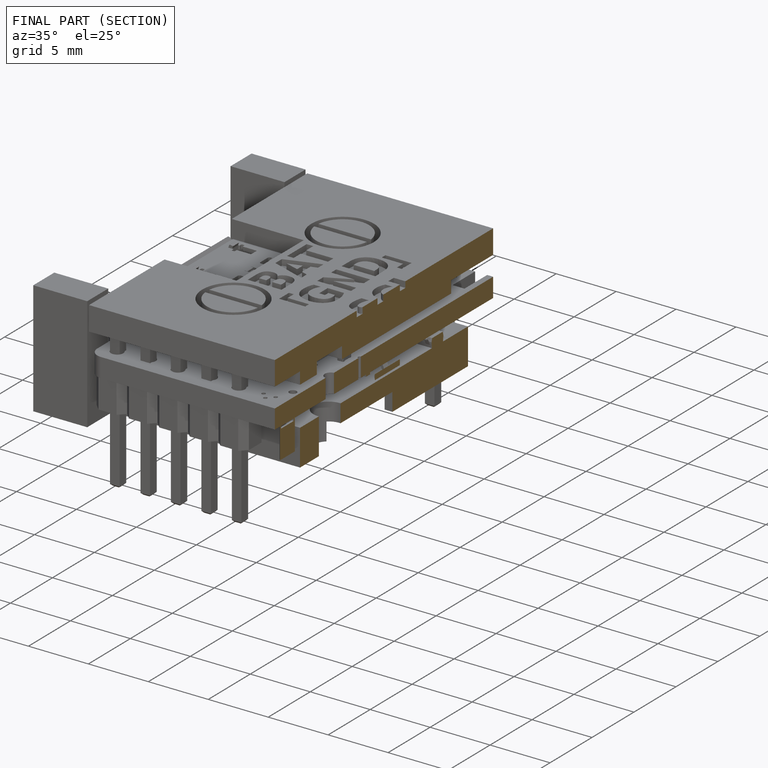
[diagram: finished part — half-section view (interior)]
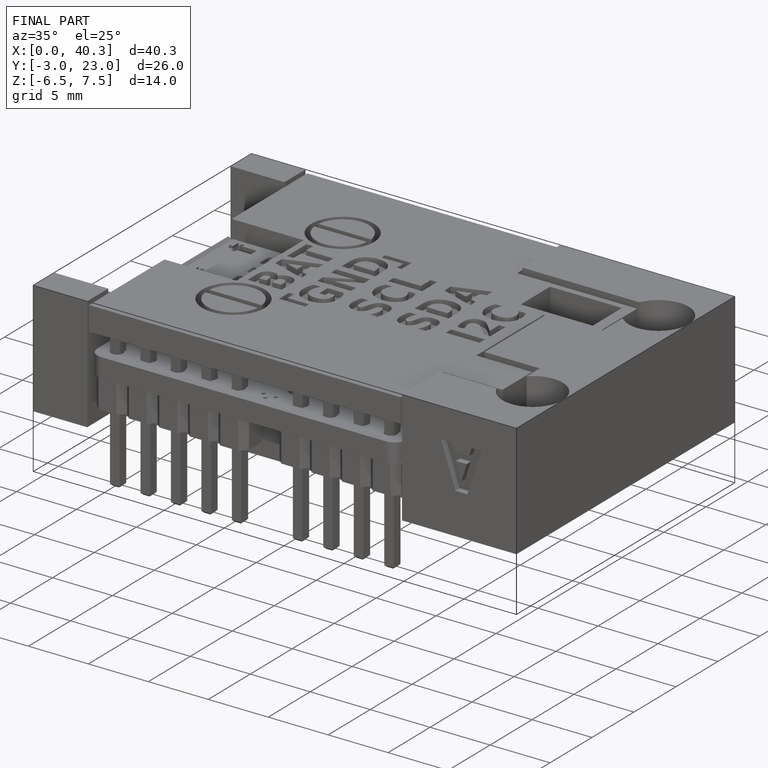
[diagram: finished part — iso view with bounding-box wireframe]
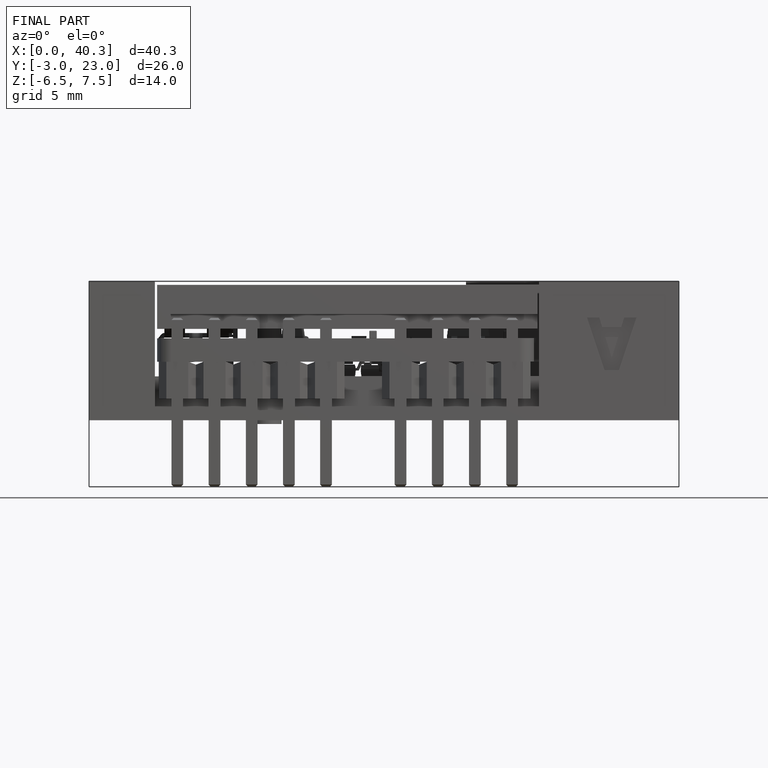
[diagram: finished part — front view with bounding-box wireframe]
